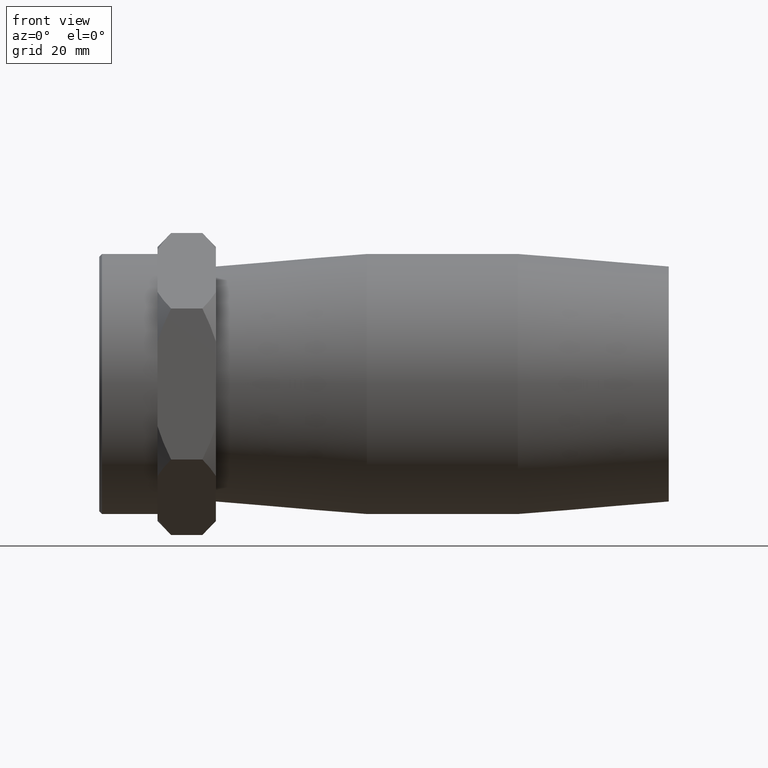
[diagram: clean part render]
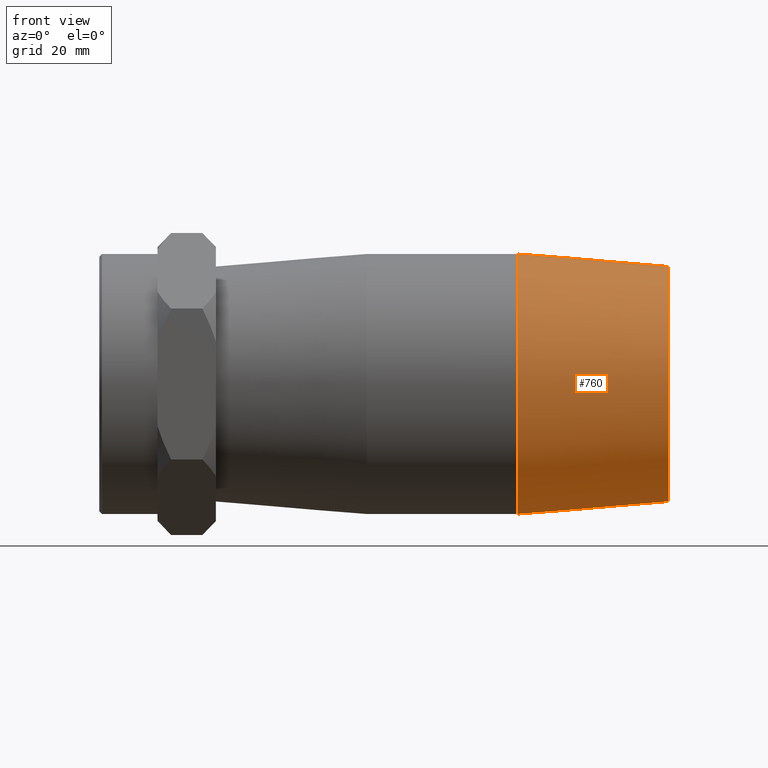
[diagram: same view with one face highlighted and labeled with its STEP entity id]
A machine part, front view. The second image highlights one B-rep face of the part: STEP entity #760.
In plain terms, the highlighted conical surface has half-angle 4.949 deg.
Its self-contained STEP definition (entity closure, byte-faithful):
#15=B_SPLINE_CURVE_WITH_KNOTS('',3,(#1338,#1339,#1340,#1341,#1342,#1343,
#1344,#1345,#1346,#1347,#1348,#1349,#1350,#1351,#1352,#1353,#1354,#1355,
#1356,#1357,#1358,#1359,#1360,#1361,#1362,#1363,#1364,#1365,#1366,#1367,
#1368,#1369,#1370,#1371),.UNSPECIFIED.,.T.,.F.,(4,2,2,2,2,2,2,2,2,2,2,2,
2,2,2,2,4),(0.,0.346158071618119,0.692316143236238,1.03110777904919,1.36989941486215,
1.70869105067511,2.04748268648806,2.39364075810618,2.7397988297243,3.06428255626262,
3.38876628280093,3.71552775466185,4.04228922652276,4.36905069838367,4.69581217024459,
5.0202958967829,5.34477962332122),.UNSPECIFIED.);
#145=FACE_BOUND('',#278,.T.);
#146=FACE_BOUND('',#279,.T.);
#201=FACE_OUTER_BOUND('',#277,.T.);
#277=EDGE_LOOP('',(#678));
#278=EDGE_LOOP('',(#679));
#279=EDGE_LOOP('',(#680));
#293=CIRCLE('',#772,25.2);
#331=CIRCLE('',#856,28.);
#338=VERTEX_POINT('',#1098);
#400=VERTEX_POINT('',#1337);
#402=VERTEX_POINT('',#1410);
#409=EDGE_CURVE('',#338,#338,#293,.T.);
#495=EDGE_CURVE('',#400,#400,#15,.T.);
#497=EDGE_CURVE('',#402,#402,#331,.T.);
#678=ORIENTED_EDGE('',*,*,#409,.F.);
#679=ORIENTED_EDGE('',*,*,#495,.T.);
#680=ORIENTED_EDGE('',*,*,#497,.T.);
#709=CONICAL_SURFACE('',#858,26.6,4.94934895763466);
#760=ADVANCED_FACE('',(#201,#145,#146),#709,.T.);
#772=AXIS2_PLACEMENT_3D('',#1099,#877,#878);
#856=AXIS2_PLACEMENT_3D('',#1411,#1069,#1070);
#858=AXIS2_PLACEMENT_3D('',#1414,#1073,#1074);
#877=DIRECTION('center_axis',(1.,0.,0.));
#878=DIRECTION('ref_axis',(0.,0.,-1.));
#1069=DIRECTION('center_axis',(1.,0.,0.));
#1070=DIRECTION('ref_axis',(0.,0.,-1.));
#1073=DIRECTION('center_axis',(-1.,0.,0.));
#1074=DIRECTION('ref_axis',(0.,1.,0.));
#1098=CARTESIAN_POINT('',(48.5,25.2,0.));
#1099=CARTESIAN_POINT('Origin',(48.5,0.,0.));
#1337=CARTESIAN_POINT('',(34.2691375172751,24.9105624616359,8.83932746647181));
#1338=CARTESIAN_POINT('Ctrl Pts',(34.269137517275,24.9105624616359,8.83932746647181));
#1339=CARTESIAN_POINT('Ctrl Pts',(33.1195796115814,25.0043804123508,8.87261806719104));
#1340=CARTESIAN_POINT('Ctrl Pts',(31.9057669027631,25.193945080598,8.66306600139349));
#1341=CARTESIAN_POINT('Ctrl Pts',(29.6883277880966,25.6854305147335,7.76589252555701));
#1342=CARTESIAN_POINT('Ctrl Pts',(28.6832748945453,25.9819833336324,7.07886484955967));
#1343=CARTESIAN_POINT('Ctrl Pts',(27.1143841099495,26.4989879719534,5.50275143850083));
#1344=CARTESIAN_POINT('Ctrl Pts',(26.4369711317267,26.7553821054636,4.51221539563456));
#1345=CARTESIAN_POINT('Ctrl Pts',(25.5324483785883,27.1118797264214,2.32589998528679));
#1346=CARTESIAN_POINT('Ctrl Pts',(25.3059616696755,27.2085558966467,1.12930545270985));
#1347=CARTESIAN_POINT('Ctrl Pts',(25.3059616696755,27.2085558966467,-1.12930545270985));
#1348=CARTESIAN_POINT('Ctrl Pts',(25.5324483785883,27.1118797264214,-2.32589998528679));
#1349=CARTESIAN_POINT('Ctrl Pts',(26.4369711317267,26.7553821054636,-4.51221539563456));
#1350=CARTESIAN_POINT('Ctrl Pts',(27.1143841099495,26.4989879719534,-5.50275143850083));
#1351=CARTESIAN_POINT('Ctrl Pts',(28.6832748945453,25.9819833336324,-7.07886484955967));
#1352=CARTESIAN_POINT('Ctrl Pts',(29.6883277880966,25.6854305147335,-7.76589252555701));
#1353=CARTESIAN_POINT('Ctrl Pts',(31.9057669027631,25.193945080598,-8.66306600139349));
#1354=CARTESIAN_POINT('Ctrl Pts',(33.1195796115814,25.0043804123508,-8.87261806719104));
#1355=CARTESIAN_POINT('Ctrl Pts',(35.3467169923611,24.8226188290584,-8.80812132377065));
#1356=CARTESIAN_POINT('Ctrl Pts',(36.4907953564612,24.8093361137388,-8.5584811964965));
#1357=CARTESIAN_POINT('Ctrl Pts',(38.5802556623303,24.923904572596,-7.62145566081701));
#1358=CARTESIAN_POINT('Ctrl Pts',(39.5260818463125,25.0467414841874,-6.93445457716229));
#1359=CARTESIAN_POINT('Ctrl Pts',(41.0155357869038,25.2954560517622,-5.37493032462019));
#1360=CARTESIAN_POINT('Ctrl Pts',(41.6604239641301,25.4381217581339,-4.3933043790815));
#1361=CARTESIAN_POINT('Ctrl Pts',(42.5157795161088,25.6421186173142,-2.25065005562807));
#1362=CARTESIAN_POINT('Ctrl Pts',(42.7260185671352,25.7000148869697,-1.08920490620305));
#1363=CARTESIAN_POINT('Ctrl Pts',(42.7260185671352,25.7000148869697,1.08920490620304));
#1364=CARTESIAN_POINT('Ctrl Pts',(42.5157795161088,25.6421186173142,2.25065005562807));
#1365=CARTESIAN_POINT('Ctrl Pts',(41.6604239641301,25.4381217581339,4.3933043790815));
#1366=CARTESIAN_POINT('Ctrl Pts',(41.0155357869038,25.2954560517622,5.37493032462019));
#1367=CARTESIAN_POINT('Ctrl Pts',(39.5260818463125,25.0467414841874,6.93445457716229));
#1368=CARTESIAN_POINT('Ctrl Pts',(38.5802556623303,24.923904572596,7.62145566081701));
#1369=CARTESIAN_POINT('Ctrl Pts',(36.4907953564612,24.8093361137388,8.5584811964965));
#1370=CARTESIAN_POINT('Ctrl Pts',(35.3467169923611,24.8226188290584,8.80812132377065));
#1371=CARTESIAN_POINT('Ctrl Pts',(34.269137517275,24.9105624616359,8.83932746647181));
#1410=CARTESIAN_POINT('',(16.1666666666667,28.,0.));
#1411=CARTESIAN_POINT('Origin',(16.1666666666667,0.,0.));
#1414=CARTESIAN_POINT('Origin',(32.3333333333334,0.,0.));